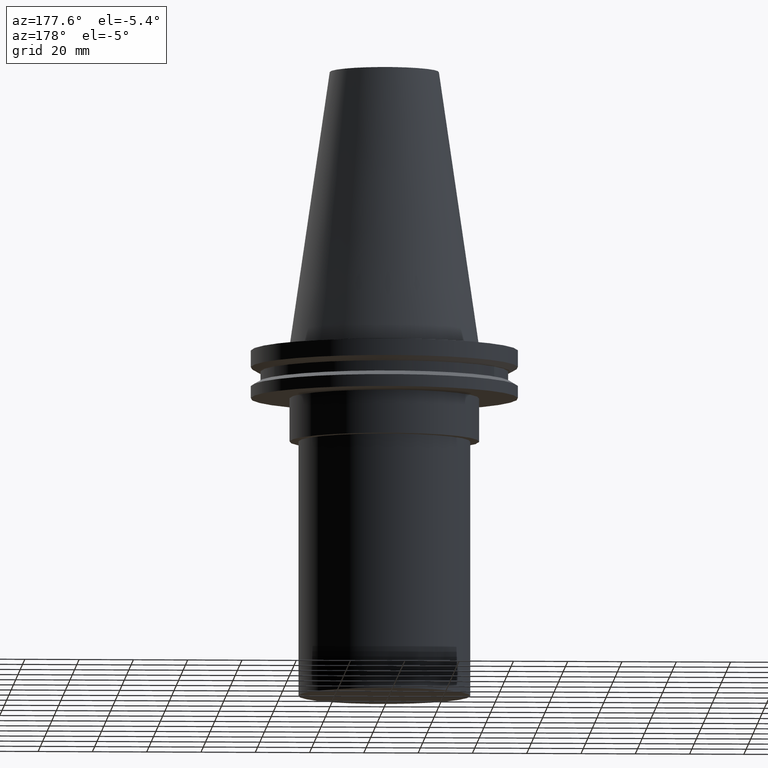
[diagram: clean part render]
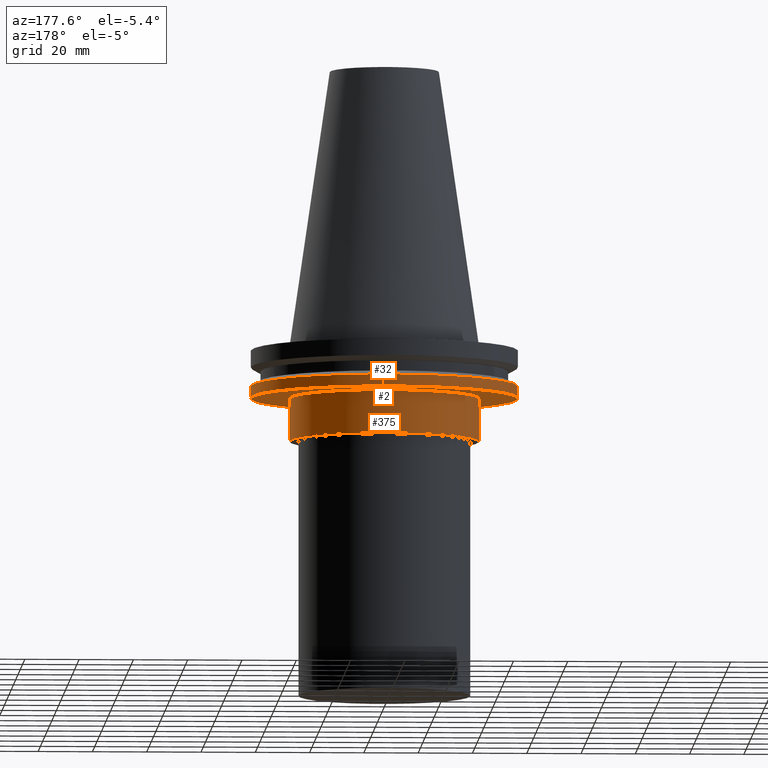
[diagram: same view with one multi-face feature highlighted, each face labeled with its STEP entity id]
A machine part, auxiliary view. The highlighted faces form ONE feature: a stepped (counterbored) hole: 2 coaxial cylindrical walls of radii 34.925 -> 49.215 mm joined by 1 annular planar shoulder face(s). The faces share edges in the B-rep.
Their STEP definitions:
[1] entity #32 (Cylinder):
#29 = CARTESIAN_POINT ( 'NONE',  ( 49.21499999999998920, 0.000000000000000000, -14.65761014474876944 ) ) ;
#31 = FACE_OUTER_BOUND ( 'NONE', #329, .T. ) ;
#32 = ADVANCED_FACE ( 'NONE', ( #31, #192 ), #157, .T. ) ;
#35 = CARTESIAN_POINT ( 'NONE',  ( 49.21499999999998920, 0.000000000000000000, -19.04999999999999716 ) ) ;
#37 = AXIS2_PLACEMENT_3D ( 'NONE', #288, #311, #219 ) ;
#53 = EDGE_CURVE ( 'NONE', #123, #123, #386, .T. ) ;
#54 = ORIENTED_EDGE ( 'NONE', *, *, #53, .T. ) ;
#57 = VERTEX_POINT ( 'NONE', #29 ) ;
#77 = DIRECTION ( 'NONE',  ( 1.000000000000000000, 0.000000000000000000, 0.000000000000000000 ) ) ;
#82 = CIRCLE ( 'NONE', #276, 49.21499999999998920 ) ;
#92 = ORIENTED_EDGE ( 'NONE', *, *, #225, .F. ) ;
#104 = DIRECTION ( 'NONE',  ( 1.000000000000000000, 0.000000000000000000, 0.000000000000000000 ) ) ;
#123 = VERTEX_POINT ( 'NONE', #35 ) ;
#157 = CYLINDRICAL_SURFACE ( 'NONE', #196, 49.21499999999998920 ) ;
#190 = DIRECTION ( 'NONE',  ( -0.000000000000000000, -0.000000000000000000, 1.000000000000000000 ) ) ;
#192 = FACE_OUTER_BOUND ( 'NONE', #215, .T. ) ;
#196 = AXIS2_PLACEMENT_3D ( 'NONE', #315, #190, #104 ) ;
#205 = DIRECTION ( 'NONE',  ( -0.000000000000000000, -0.000000000000000000, 1.000000000000000000 ) ) ;
#215 = EDGE_LOOP ( 'NONE', ( #54 ) ) ;
#219 = DIRECTION ( 'NONE',  ( 1.000000000000000000, 0.000000000000000000, 0.000000000000000000 ) ) ;
#225 = EDGE_CURVE ( 'NONE', #57, #57, #82, .T. ) ;
#276 = AXIS2_PLACEMENT_3D ( 'NONE', #321, #205, #77 ) ;
#288 = CARTESIAN_POINT ( 'NONE',  ( 0.000000000000000000, 0.000000000000000000, -19.04999999999999716 ) ) ;
#311 = DIRECTION ( 'NONE',  ( -0.000000000000000000, -0.000000000000000000, 1.000000000000000000 ) ) ;
#315 = CARTESIAN_POINT ( 'NONE',  ( 0.000000000000000000, 0.000000000000000000, 101.5999999999999943 ) ) ;
#321 = CARTESIAN_POINT ( 'NONE',  ( 0.000000000000000000, 0.000000000000000000, -14.65761014474876944 ) ) ;
#329 = EDGE_LOOP ( 'NONE', ( #92 ) ) ;
#386 = CIRCLE ( 'NONE', #37, 49.21499999999998920 ) ;
[2] entity #375 (Cylinder):
#4 = CARTESIAN_POINT ( 'NONE',  ( 34.92499999999999716, 0.000000000000000000, -19.04999999999999716 ) ) ;
#17 = DIRECTION ( 'NONE',  ( 1.000000000000000000, 0.000000000000000000, 0.000000000000000000 ) ) ;
#26 = ORIENTED_EDGE ( 'NONE', *, *, #247, .F. ) ;
#59 = CARTESIAN_POINT ( 'NONE',  ( 0.000000000000000000, 0.000000000000000000, 101.5999999999999943 ) ) ;
#142 = EDGE_LOOP ( 'NONE', ( #26 ) ) ;
#143 = CARTESIAN_POINT ( 'NONE',  ( 0.000000000000000000, 0.000000000000000000, -19.04999999999999716 ) ) ;
#150 = DIRECTION ( 'NONE',  ( -0.000000000000000000, -0.000000000000000000, 1.000000000000000000 ) ) ;
#152 = CIRCLE ( 'NONE', #373, 34.92499999999999716 ) ;
#185 = VERTEX_POINT ( 'NONE', #4 ) ;
#191 = FACE_OUTER_BOUND ( 'NONE', #280, .T. ) ;
#207 = VERTEX_POINT ( 'NONE', #297 ) ;
#213 = ORIENTED_EDGE ( 'NONE', *, *, #327, .T. ) ;
#217 = DIRECTION ( 'NONE',  ( 1.000000000000000000, 0.000000000000000000, 0.000000000000000000 ) ) ;
#223 = AXIS2_PLACEMENT_3D ( 'NONE', #59, #395, #279 ) ;
#247 = EDGE_CURVE ( 'NONE', #185, #185, #152, .T. ) ;
#273 = CYLINDRICAL_SURFACE ( 'NONE', #223, 34.92499999999999716 ) ;
#279 = DIRECTION ( 'NONE',  ( 1.000000000000000000, 0.000000000000000000, 0.000000000000000000 ) ) ;
#280 = EDGE_LOOP ( 'NONE', ( #213 ) ) ;
#294 = CARTESIAN_POINT ( 'NONE',  ( 0.000000000000000000, 0.000000000000000000, -35.00000000000000000 ) ) ;
#297 = CARTESIAN_POINT ( 'NONE',  ( 34.92499999999999716, 0.000000000000000000, -35.00000000000000000 ) ) ;
#301 = CIRCLE ( 'NONE', #379, 34.92499999999999716 ) ;
#302 = DIRECTION ( 'NONE',  ( -0.000000000000000000, -0.000000000000000000, 1.000000000000000000 ) ) ;
#309 = FACE_OUTER_BOUND ( 'NONE', #142, .T. ) ;
#327 = EDGE_CURVE ( 'NONE', #207, #207, #301, .T. ) ;
#373 = AXIS2_PLACEMENT_3D ( 'NONE', #143, #302, #17 ) ;
#375 = ADVANCED_FACE ( 'NONE', ( #309, #191 ), #273, .T. ) ;
#379 = AXIS2_PLACEMENT_3D ( 'NONE', #294, #150, #217 ) ;
#395 = DIRECTION ( 'NONE',  ( -0.000000000000000000, -0.000000000000000000, 1.000000000000000000 ) ) ;
[3] entity #2 (Plane):
#2 = ADVANCED_FACE ( 'NONE', ( #258, #282 ), #133, .F. ) ;
#4 = CARTESIAN_POINT ( 'NONE',  ( 34.92499999999999716, 0.000000000000000000, -19.04999999999999716 ) ) ;
#17 = DIRECTION ( 'NONE',  ( 1.000000000000000000, 0.000000000000000000, 0.000000000000000000 ) ) ;
#20 = EDGE_LOOP ( 'NONE', ( #39 ) ) ;
#22 = EDGE_LOOP ( 'NONE', ( #180 ) ) ;
#35 = CARTESIAN_POINT ( 'NONE',  ( 49.21499999999998920, 0.000000000000000000, -19.04999999999999716 ) ) ;
#37 = AXIS2_PLACEMENT_3D ( 'NONE', #288, #311, #219 ) ;
#39 = ORIENTED_EDGE ( 'NONE', *, *, #247, .T. ) ;
#40 = CARTESIAN_POINT ( 'NONE',  ( 0.000000000000000000, 49.21499999999998920, -19.04999999999999716 ) ) ;
#53 = EDGE_CURVE ( 'NONE', #123, #123, #386, .T. ) ;
#106 = AXIS2_PLACEMENT_3D ( 'NONE', #40, #250, #287 ) ;
#123 = VERTEX_POINT ( 'NONE', #35 ) ;
#133 = PLANE ( 'NONE',  #106 ) ;
#143 = CARTESIAN_POINT ( 'NONE',  ( 0.000000000000000000, 0.000000000000000000, -19.04999999999999716 ) ) ;
#152 = CIRCLE ( 'NONE', #373, 34.92499999999999716 ) ;
#180 = ORIENTED_EDGE ( 'NONE', *, *, #53, .F. ) ;
#185 = VERTEX_POINT ( 'NONE', #4 ) ;
#219 = DIRECTION ( 'NONE',  ( 1.000000000000000000, 0.000000000000000000, 0.000000000000000000 ) ) ;
#247 = EDGE_CURVE ( 'NONE', #185, #185, #152, .T. ) ;
#250 = DIRECTION ( 'NONE',  ( 0.000000000000000000, -0.000000000000000000, 1.000000000000000000 ) ) ;
#258 = FACE_OUTER_BOUND ( 'NONE', #22, .T. ) ;
#282 = FACE_BOUND ( 'NONE', #20, .T. ) ;
#287 = DIRECTION ( 'NONE',  ( 1.000000000000000000, 0.000000000000000000, 0.000000000000000000 ) ) ;
#288 = CARTESIAN_POINT ( 'NONE',  ( 0.000000000000000000, 0.000000000000000000, -19.04999999999999716 ) ) ;
#302 = DIRECTION ( 'NONE',  ( -0.000000000000000000, -0.000000000000000000, 1.000000000000000000 ) ) ;
#311 = DIRECTION ( 'NONE',  ( -0.000000000000000000, -0.000000000000000000, 1.000000000000000000 ) ) ;
#373 = AXIS2_PLACEMENT_3D ( 'NONE', #143, #302, #17 ) ;
#386 = CIRCLE ( 'NONE', #37, 49.21499999999998920 ) ;